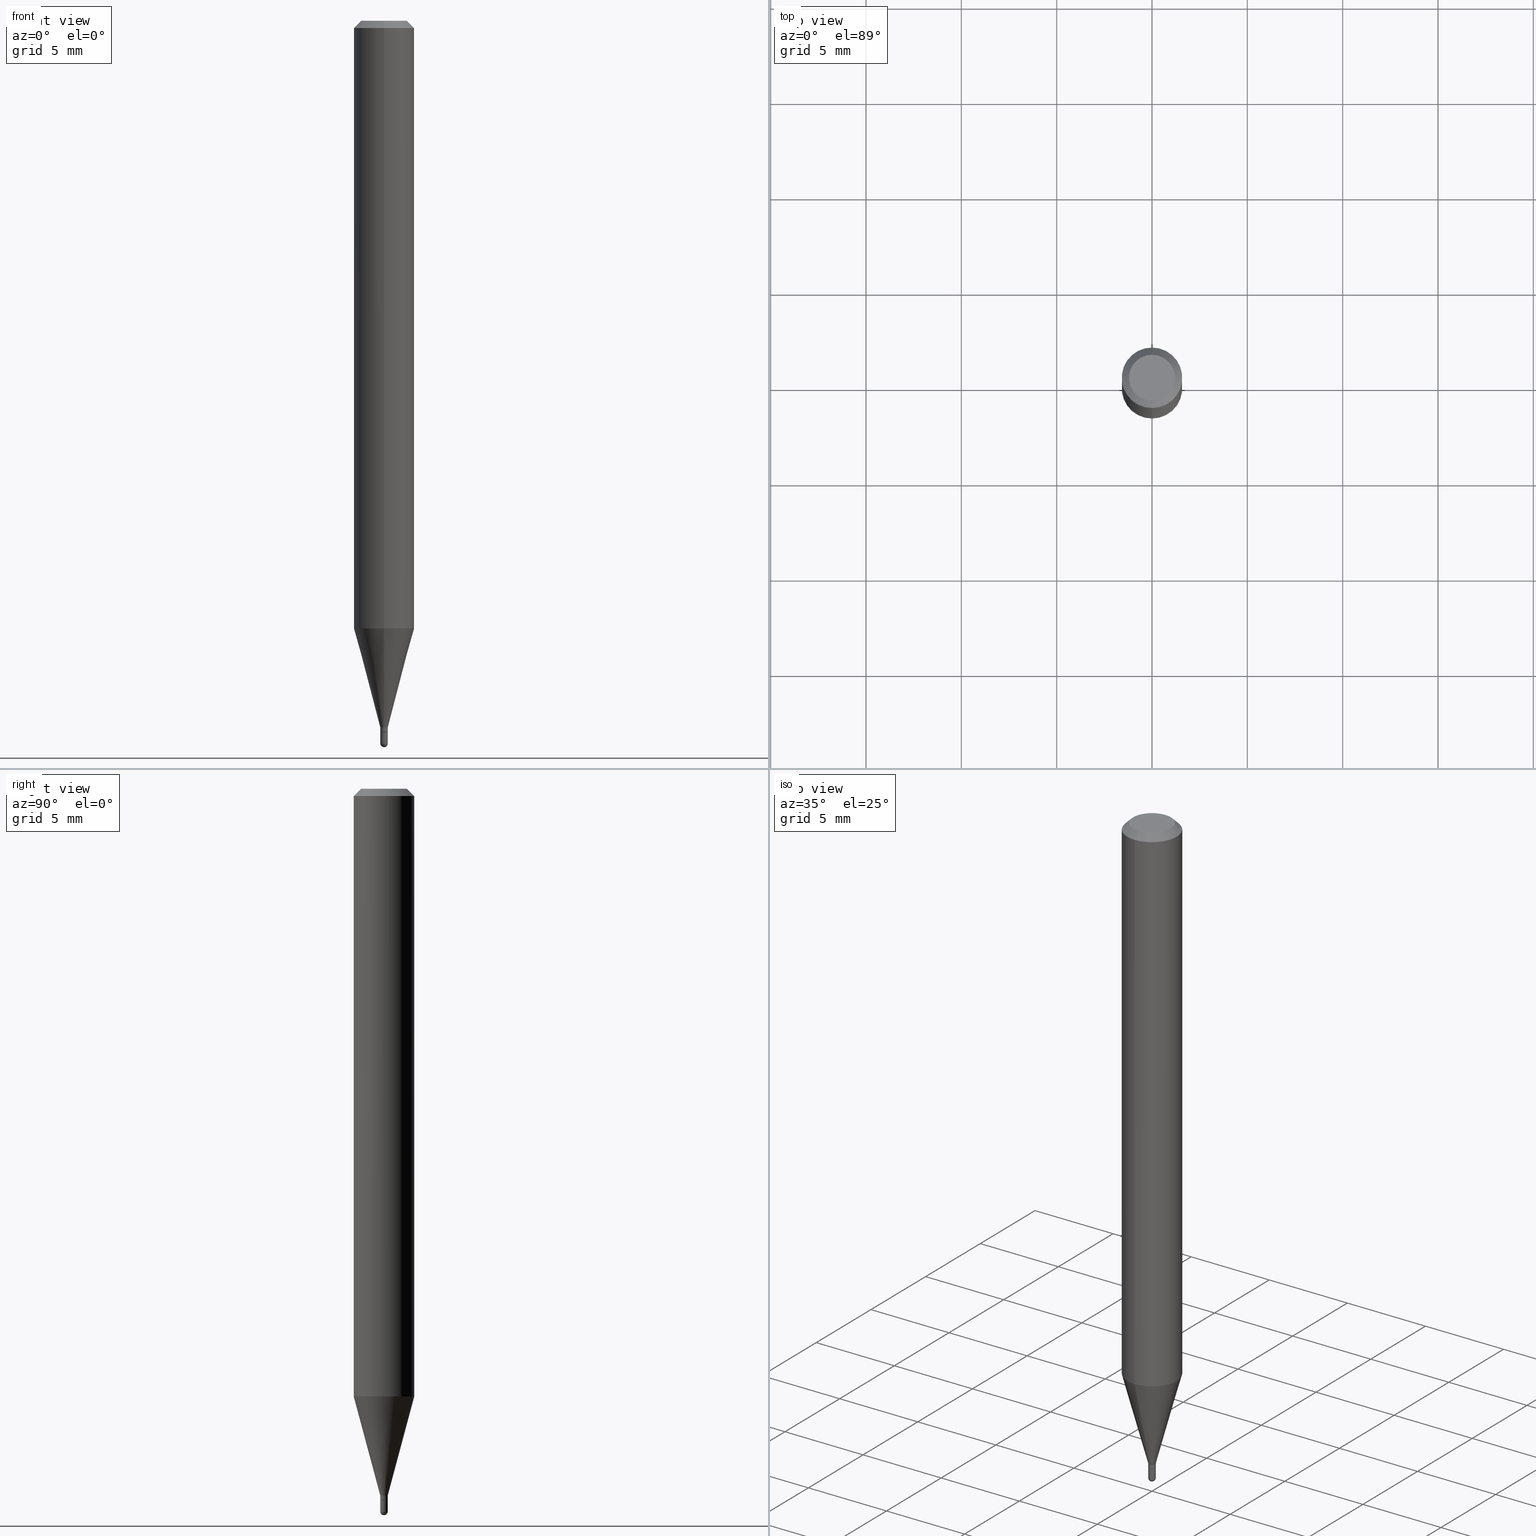
[diagram: canonical four-view strip — front | top / right | iso, engineering-drawing reading convention]
A machine part, canonical four-view strip (front | top / right | iso — engineering-drawing reading convention). The complete STEP part file that produces these views, byte-faithful:
ISO-10303-21;
HEADER;
FILE_DESCRIPTION (( 'STEP AP203' ),
    '1' );
FILE_NAME ('30102.STEP',
    '2024-03-08T15:17:46',
    ( '' ),
    ( '' ),
    'SwSTEP 2.0',
    'SolidWorks 2023',
    '' );
FILE_SCHEMA (( 'CONFIG_CONTROL_DESIGN' ));
ENDSEC;

DATA;
#1 = SHAPE_DEFINITION_REPRESENTATION ( #191, #194 ) ;
#2 = DIRECTION ( 'NONE',  ( -2.438888398687161749E-29, 3.500904856913780958E-15, 1.000000000000000000 ) ) ;
#3 = CALENDAR_DATE ( 2024, 8, 3 ) ;
#4 = DIRECTION ( 'NONE',  ( -6.982962677686265922E-15, -1.000000000000000000, 0.000000000000000000 ) ) ;
#5 = AXIS2_PLACEMENT_3D ( 'NONE', #76, #237, #117 ) ;
#6 = ORGANIZATION ( 'UNSPECIFIED', 'UNSPECIFIED', '' ) ;
#7 = LINE ( 'NONE', #442, #169 ) ;
#8 = EDGE_LOOP ( 'NONE', ( #418, #421, #465, #313 ) ) ;
#9 = DIRECTION ( 'NONE',  ( -2.445468806185136877E-29, 3.491481338843145188E-15, 1.000000000000000000 ) ) ;
#10 = EDGE_LOOP ( 'NONE', ( #232, #271, #378, #414 ) ) ;
#11 = EDGE_CURVE ( 'NONE', #463, #410, #221, .T. ) ;
#12 = DIRECTION ( 'NONE',  ( -2.438888398687161749E-29, 3.500904856913780958E-15, 1.000000000000000000 ) ) ;
#13 = ORIENTED_EDGE ( 'NONE', *, *, #511, .F. ) ;
#14 = AXIS2_PLACEMENT_3D ( 'NONE', #344, #497, #65 ) ;
#15 = VECTOR ( 'NONE', #78, 39.37007874015748143 ) ;
#16 = CARTESIAN_POINT ( 'NONE',  ( 3.582727057671441680E-29, -5.142829234806344242E-15, -1.469000000000000306 ) ) ;
#17 = VERTEX_POINT ( 'NONE', #382 ) ;
#18 = CARTESIAN_POINT ( 'NONE',  ( -5.446710888591297207E-17, -0.007800000000004489974, -1.459000000000000519 ) ) ;
#19 = ORIENTED_EDGE ( 'NONE', *, *, #257, .T. ) ;
#20 = CARTESIAN_POINT ( 'NONE',  ( 3.649128552589461564E-29, -5.209988453821742721E-15, -1.492200000000000193 ) ) ;
#21 = CARTESIAN_POINT ( 'NONE',  ( -4.364351673553611504E-16, -0.06250000000000441314, -1.254856820825980934 ) ) ;
#22 = CLOSED_SHELL ( 'NONE', ( #288, #115, #131, #27, #103, #90, #355, #75, #48, #476, #217, #276 ) ) ;
#23 = CIRCLE ( 'NONE', #5, 0.06250000000000002776 ) ;
#24 = APPROVAL_PERSON_ORGANIZATION ( #438, #294, #351 ) ;
#25 = DIRECTION ( 'NONE',  ( 5.024295867790855746E-15, 0.7071067811869431452, 0.7071067811861520003 ) ) ;
#26 = VERTEX_POINT ( 'NONE', #21 ) ;
#27 = ADVANCED_FACE ( 'NONE', ( #176 ), #306, .T. ) ;
#28 = CARTESIAN_POINT ( 'NONE',  ( -0.007799999999999709076, -5.114064936901876606E-15, -1.469000000000000750 ) ) ;
#29 = FACE_OUTER_BOUND ( 'NONE', #499, .T. ) ;
#30 = ORIENTED_EDGE ( 'NONE', *, *, #40, .F. ) ;
#31 = CARTESIAN_POINT ( 'NONE',  ( 0.007799999999999709076, -5.183453195646533500E-15, -1.469000000000000750 ) ) ;
#32 = AXIS2_PLACEMENT_3D ( 'NONE', #112, #235, #93 ) ;
#33 = CALENDAR_DATE ( 2024, 8, 3 ) ;
#34 = ORIENTED_EDGE ( 'NONE', *, *, #192, .T. ) ;
#35 = AXIS2_PLACEMENT_3D ( 'NONE', #412, #282, #80 ) ;
#36 = DIRECTION ( 'NONE',  ( -2.438888398687161749E-29, 3.500904856913780958E-15, 1.000000000000000000 ) ) ;
#37 = CARTESIAN_POINT ( 'NONE',  ( -0.007799999999999709076, -5.114064936901876606E-15, -1.492200000000000193 ) ) ;
#38 = FACE_OUTER_BOUND ( 'NONE', #216, .T. ) ;
#39 = AXIS2_PLACEMENT_3D ( 'NONE', #153, #362, #319 ) ;
#40 = EDGE_CURVE ( 'NONE', #269, #484, #308, .T. ) ;
#41 = PERSON_AND_ORGANIZATION ( #416, #6 ) ;
#42 = CARTESIAN_POINT ( 'NONE',  ( 3.558338173684570517E-29, -5.107820186237207836E-15, -1.459000000000000519 ) ) ;
#43 = CYLINDRICAL_SURFACE ( 'NONE', #256, 0.007799999999999709076 ) ;
#44 = DIRECTION ( 'NONE',  ( -2.438888398687161749E-29, 3.500904856913780958E-15, 1.000000000000000000 ) ) ;
#45 = CLOSED_SHELL ( 'NONE', ( #375, #440, #174, #359, #322 ) ) ;
#46 = CIRCLE ( 'NONE', #35, 0.007799999999999709076 ) ;
#47 = CC_DESIGN_SECURITY_CLASSIFICATION ( #196, ( #472 ) ) ;
#48 = ADVANCED_FACE ( 'NONE', ( #29 ), #182, .F. ) ;
#49 = FACE_OUTER_BOUND ( 'NONE', #419, .T. ) ;
#50 = ORIENTED_EDGE ( 'NONE', *, *, #296, .F. ) ;
#51 = FACE_OUTER_BOUND ( 'NONE', #163, .T. ) ;
#52 = EDGE_LOOP ( 'NONE', ( #337, #126, #265, #295 ) ) ;
#53 = EDGE_LOOP ( 'NONE', ( #206, #387, #255, #108 ) ) ;
#54 = EDGE_CURVE ( 'NONE', #455, #83, #158, .T. ) ;
#55 = AXIS2_PLACEMENT_3D ( 'NONE', #358, #353, #396 ) ;
#56 = CC_DESIGN_APPROVAL ( #294, ( #196 ) ) ;
#57 = LENGTH_MEASURE_WITH_UNIT ( LENGTH_MEASURE( 0.02539999999999999897 ), #501 );
#58 = ORIENTED_EDGE ( 'NONE', *, *, #84, .F. ) ;
#59 = CARTESIAN_POINT ( 'NONE',  ( 3.582727057671442241E-29, -5.142829234806345819E-15, -1.469000000000000750 ) ) ;
#60 = VERTEX_POINT ( 'NONE', #508 ) ;
#61 = CIRCLE ( 'NONE', #424, 0.04750000000000004219 ) ;
#62 = AXIS2_PLACEMENT_3D ( 'NONE', #339, #64, #172 ) ;
#63 = CC_DESIGN_DATE_AND_TIME_ASSIGNMENT ( #315, #364, ( #196 ) ) ;
#64 = DIRECTION ( 'NONE',  ( -2.445468806185136597E-29, 3.491481338843145583E-15, 1.000000000000000000 ) ) ;
#65 = DIRECTION ( 'NONE',  ( -6.982962677686265922E-15, -1.000000000000000000, 3.500904856913781353E-15 ) ) ;
#66 = ORIENTED_EDGE ( 'NONE', *, *, #159, .T. ) ;
#67 = CARTESIAN_POINT ( 'NONE',  ( 5.446710888598677370E-17, 0.007799999999994580366, -1.469000000000000750 ) ) ;
#68 = COORDINATED_UNIVERSAL_TIME_OFFSET ( 5, 0, .BEHIND. ) ;
#69 = ORIENTED_EDGE ( 'NONE', *, *, #263, .T. ) ;
#70 = DIRECTION ( 'NONE',  ( -4.937700262167293278E-15, -0.7071067811869382602, 0.7071067811861568853 ) ) ;
#71 = EDGE_CURVE ( 'NONE', #342, #168, #253, .T. ) ;
#72 = CONICAL_SURFACE ( 'NONE', #505, 0.007299999999999755469, 0.7853981633980042787 ) ;
#73 = DATE_AND_TIME ( #147, #177 ) ;
#74 = DIRECTION ( 'NONE',  ( 1.000000000000000000, -6.982962677686294321E-15, 0.000000000000000000 ) ) ;
#75 = ADVANCED_FACE ( 'NONE', ( #503 ), #367, .T. ) ;
#76 = CARTESIAN_POINT ( 'NONE',  ( 3.060455742325940316E-29, -4.393134338761063639E-15, -1.254856820825981156 ) ) ;
#77 = CC_DESIGN_PERSON_AND_ORGANIZATION_ASSIGNMENT ( #430, #111, ( #472 ) ) ;
#78 = DIRECTION ( 'NONE',  ( 1.839019923739600315E-15, 0.2588190451025249583, 0.9659258262890670910 ) ) ;
#79 = CONICAL_SURFACE ( 'NONE', #55, 0.007799999999999381213, 0.2617993877991502960 ) ;
#80 = DIRECTION ( 'NONE',  ( 1.000000000000000000, -6.982962677686294321E-15, 0.000000000000000000 ) ) ;
#81 = APPROVAL_ROLE ( '' ) ;
#82 = DIRECTION ( 'NONE',  ( -6.982962677686265133E-15, -1.000000000000000000, 3.500904856913780564E-15 ) ) ;
#83 = VERTEX_POINT ( 'NONE', #31 ) ;
#84 = EDGE_CURVE ( 'NONE', #60, #83, #379, .T. ) ;
#85 = CARTESIAN_POINT ( 'NONE',  ( 0.000000000000000000, 0.000000000000000000, 0.000000000000000000 ) ) ;
#86 = APPROVAL_PERSON_ORGANIZATION ( #464, #427, #283 ) ;
#87 = FACE_OUTER_BOUND ( 'NONE', #123, .T. ) ;
#88 = EDGE_LOOP ( 'NONE', ( #302, #352, #133, #219 ) ) ;
#89 = MANIFOLD_SOLID_BREP ( 'Body-Move/Copy2[1]', #45 ) ;
#90 = ADVANCED_FACE ( 'NONE', ( #189 ), #79, .T. ) ;
#91 = DIRECTION ( 'NONE',  ( -2.445468806185136597E-29, 3.491481338843145583E-15, 1.000000000000000000 ) ) ;
#92 = ORIENTED_EDGE ( 'NONE', *, *, #317, .F. ) ;
#93 = DIRECTION ( 'NONE',  ( -6.982962677686265922E-15, -1.000000000000000000, 3.517254291842738179E-15 ) ) ;
#94 = ORIENTED_EDGE ( 'NONE', *, *, #207, .T. ) ;
#95 = APPLICATION_CONTEXT ( 'configuration controlled 3d designs of mechanical parts and assemblies' ) ;
#96 = VECTOR ( 'NONE', #310, 39.37007874015748143 ) ;
#97 = VECTOR ( 'NONE', #482, 39.37007874015748143 ) ;
#98 = CC_DESIGN_APPROVAL ( #427, ( #280 ) ) ;
#99 = AXIS2_PLACEMENT_3D ( 'NONE', #16, #138, #343 ) ;
#100 = ORIENTED_EDGE ( 'NONE', *, *, #390, .F. ) ;
#101 = DIRECTION ( 'NONE',  ( -6.982962677686265922E-15, -1.000000000000000000, 0.000000000000000000 ) ) ;
#102 = DIRECTION ( 'NONE',  ( -2.438888398687161749E-29, 3.500904856913780958E-15, 1.000000000000000000 ) ) ;
#103 = ADVANCED_FACE ( 'NONE', ( #154 ), #152, .T. ) ;
#104 = DIRECTION ( 'NONE',  ( 1.000000000000000000, -6.982962677686265922E-15, 4.883557194083112901E-29 ) ) ;
#105 = ORIENTED_EDGE ( 'NONE', *, *, #456, .T. ) ;
#106 = AXIS2_PLACEMENT_3D ( 'NONE', #330, #448, #4 ) ;
#107 = VERTEX_POINT ( 'NONE', #509 ) ;
#108 = ORIENTED_EDGE ( 'NONE', *, *, #500, .F. ) ;
#109 = EDGE_CURVE ( 'NONE', #168, #342, #222, .T. ) ;
#110 = DIRECTION ( 'NONE',  ( -2.438888398687161749E-29, 3.500904856913780958E-15, 1.000000000000000000 ) ) ;
#111 = PERSON_AND_ORGANIZATION_ROLE ( 'creator' ) ;
#112 = CARTESIAN_POINT ( 'NONE',  ( 3.658332598030829977E-31, -5.251357285370796693E-17, -0.01500000000000035853 ) ) ;
#113 = LINE ( 'NONE', #431, #144 ) ;
#114 = CARTESIAN_POINT ( 'NONE',  ( 3.434669950589054174E-29, -5.517105378111915335E-15, -1.492200000000000193 ) ) ;
#115 = ADVANCED_FACE ( 'NONE', ( #473 ), #72, .T. ) ;
#116 = DIRECTION ( 'NONE',  ( 6.982962677686265922E-15, 1.000000000000000000, -3.517254291842738179E-15 ) ) ;
#117 = DIRECTION ( 'NONE',  ( -6.982962677686265922E-15, -1.000000000000000000, 4.370956789862819572E-15 ) ) ;
#118 = DIRECTION ( 'NONE',  ( 1.000000000000000000, 0.000000000000000000, 0.000000000000000000 ) ) ;
#119 = AXIS2_PLACEMENT_3D ( 'NONE', #458, #102, #461 ) ;
#120 = CARTESIAN_POINT ( 'NONE',  ( 5.364597654992228828E-17, 0.007299999999994612881, -1.469000000000000306 ) ) ;
#121 = COORDINATED_UNIVERSAL_TIME_OFFSET ( 5, 0, .BEHIND. ) ;
#122 = FACE_OUTER_BOUND ( 'NONE', #10, .T. ) ;
#123 = EDGE_LOOP ( 'NONE', ( #13, #66, #426, #128 ) ) ;
#124 = EDGE_CURVE ( 'NONE', #372, #17, #354, .T. ) ;
#125 = CARTESIAN_POINT ( 'NONE',  ( 4.440892098500931845E-16, 0.06249999999999561462, -1.254856820825981378 ) ) ;
#126 = ORIENTED_EDGE ( 'NONE', *, *, #296, .T. ) ;
#127 = CARTESIAN_POINT ( 'NONE',  ( 3.558338173684570517E-29, -5.107820186237207836E-15, -1.459000000000000519 ) ) ;
#128 = ORIENTED_EDGE ( 'NONE', *, *, #456, .F. ) ;
#129 = CIRCLE ( 'NONE', #239, 0.007799999999999381213 ) ;
#130 =( GEOMETRIC_REPRESENTATION_CONTEXT ( 3 ) GLOBAL_UNCERTAINTY_ASSIGNED_CONTEXT ( ( #165 ) ) GLOBAL_UNIT_ASSIGNED_CONTEXT ( ( #254, #454, #215 ) ) REPRESENTATION_CONTEXT ( 'NONE', 'WORKASPACE' ) );
#131 = ADVANCED_FACE ( 'NONE', ( #190 ), #369, .T. ) ;
#132 = DIRECTION ( 'NONE',  ( 1.000000000000000000, -6.982962677686265922E-15, 4.883557194083112901E-29 ) ) ;
#133 = ORIENTED_EDGE ( 'NONE', *, *, #304, .F. ) ;
#134 = CARTESIAN_POINT ( 'NONE',  ( 2.497557716197062816E-16, 0.007799999999994272452, -1.459000000000000519 ) ) ;
#135 = EDGE_LOOP ( 'NONE', ( #285, #225 ) ) ;
#136 = CIRCLE ( 'NONE', #479, 0.007799999999999709076 ) ;
#137 = APPROVAL_PERSON_ORGANIZATION ( #231, #487, #81 ) ;
#138 = DIRECTION ( 'NONE',  ( -2.438888398687161749E-29, 3.500904856913780958E-15, 1.000000000000000000 ) ) ;
#139 = LINE ( 'NONE', #457, #146 ) ;
#140 = ORIENTED_EDGE ( 'NONE', *, *, #304, .T. ) ;
#141 = COORDINATED_UNIVERSAL_TIME_OFFSET ( 5, 0, .BEHIND. ) ;
#142 = ORIENTED_EDGE ( 'NONE', *, *, #109, .T. ) ;
#143 = CARTESIAN_POINT ( 'NONE',  ( 3.658332598030829977E-31, -5.251357285370796693E-17, -0.01500000000000035853 ) ) ;
#144 = VECTOR ( 'NONE', #229, 39.37007874015748143 ) ;
#145 = EDGE_CURVE ( 'NONE', #17, #463, #434, .T. ) ;
#146 = VECTOR ( 'NONE', #218, 39.37007874015748143 ) ;
#147 = CALENDAR_DATE ( 2024, 8, 3 ) ;
#148 = ORIENTED_EDGE ( 'NONE', *, *, #338, .T. ) ;
#149 = DIRECTION ( 'NONE',  ( -1.000000000000000000, 6.982962677686265922E-15, -4.876176775795935793E-29 ) ) ;
#150 = DIRECTION ( 'NONE',  ( 6.982962677686265922E-15, 1.000000000000000000, -3.500904856913780958E-15 ) ) ;
#151 = DIRECTION ( 'NONE',  ( 2.438088387897960049E-29, -3.491481338843145188E-15, -1.000000000000000000 ) ) ;
#152 = CONICAL_SURFACE ( 'NONE', #39, 0.007799999999999381213, 0.2617993877991502960 ) ;
#153 = CARTESIAN_POINT ( 'NONE',  ( 3.558338173684570517E-29, -5.107820186237207836E-15, -1.459000000000000519 ) ) ;
#154 = FACE_OUTER_BOUND ( 'NONE', #307, .T. ) ;
#155 = PERSON_AND_ORGANIZATION ( #416, #6 ) ;
#156 = CARTESIAN_POINT ( 'NONE',  ( 3.434669950589054174E-29, -5.517105378111915335E-15, -1.492200000000000193 ) ) ;
#157 = DATE_AND_TIME ( #3, #385 ) ;
#158 = CIRCLE ( 'NONE', #478, 0.007799999999999709076 ) ;
#159 = EDGE_CURVE ( 'NONE', #392, #209, #277, .T. ) ;
#160 = AXIS2_PLACEMENT_3D ( 'NONE', #323, #36, #193 ) ;
#161 = LINE ( 'NONE', #477, #97 ) ;
#162 = DIRECTION ( 'NONE',  ( -6.982962677686265922E-15, -1.000000000000000000, 3.500904856913781353E-15 ) ) ;
#163 = EDGE_LOOP ( 'NONE', ( #334, #293, #340, #184 ) ) ;
#164 = LINE ( 'NONE', #366, #15 ) ;
#165 = UNCERTAINTY_MEASURE_WITH_UNIT (LENGTH_MEASURE( 1.000000000000000082E-05 ), #254, 'distance_accuracy_value', 'NONE');
#166 = EDGE_CURVE ( 'NONE', #26, #331, #23, .T. ) ;
#167 = DIRECTION ( 'NONE',  ( -2.438888398687161749E-29, 3.500904856913780958E-15, 1.000000000000000000 ) ) ;
#168 = VERTEX_POINT ( 'NONE', #398 ) ;
#169 = VECTOR ( 'NONE', #9, 39.37007874015748143 ) ;
#170 = DIRECTION ( 'NONE',  ( -2.438888398687161469E-29, 3.500904856913780958E-15, 1.000000000000000000 ) ) ;
#171 = ORIENTED_EDGE ( 'NONE', *, *, #446, .T. ) ;
#172 = DIRECTION ( 'NONE',  ( 1.000000000000000000, -6.982962677686266711E-15, 4.876176775795935232E-29 ) ) ;
#173 = ORIENTED_EDGE ( 'NONE', *, *, #84, .T. ) ;
#174 = ADVANCED_FACE ( 'NONE', ( #38 ), #197, .F. ) ;
#175 = LINE ( 'NONE', #299, #495 ) ;
#176 = FACE_OUTER_BOUND ( 'NONE', #248, .T. ) ;
#177 = LOCAL_TIME ( 10, 17, 46.00000000000000000, #121 ) ;
#178 = FACE_OUTER_BOUND ( 'NONE', #53, .T. ) ;
#179 = VERTEX_POINT ( 'NONE', #469 ) ;
#180 = CC_DESIGN_PERSON_AND_ORGANIZATION_ASSIGNMENT ( #365, #241, ( #280 ) ) ;
#181 = DIRECTION ( 'NONE',  ( 1.000000000000000000, -7.105427357601001070E-15, 4.926315508542082329E-29 ) ) ;
#182 = PLANE ( 'NONE',  #186 ) ;
#183 = MECHANICAL_CONTEXT ( 'NONE', #303, 'mechanical' ) ;
#184 = ORIENTED_EDGE ( 'NONE', *, *, #257, .F. ) ;
#185 = CARTESIAN_POINT ( 'NONE',  ( 3.582727057671441680E-29, -5.142829234806344242E-15, -1.469000000000000306 ) ) ;
#186 = AXIS2_PLACEMENT_3D ( 'NONE', #350, #502, #150 ) ;
#187 = APPROVAL_STATUS ( 'not_yet_approved' ) ;
#188 = ORIENTED_EDGE ( 'NONE', *, *, #40, .T. ) ;
#189 = FACE_OUTER_BOUND ( 'NONE', #211, .T. ) ;
#190 = FACE_OUTER_BOUND ( 'NONE', #52, .T. ) ;
#191 = PRODUCT_DEFINITION_SHAPE ( 'NONE', 'NONE',  #280 ) ;
#192 = EDGE_CURVE ( 'NONE', #269, #168, #113, .T. ) ;
#193 = DIRECTION ( 'NONE',  ( -6.982962677686265922E-15, -1.000000000000000000, 3.517254291842738179E-15 ) ) ;
#194 = ADVANCED_BREP_SHAPE_REPRESENTATION ( '30102', ( #89, #273, #395 ), #130 ) ;
#195 = AXIS2_PLACEMENT_3D ( 'NONE', #143, #258, #397 ) ;
#196 = SECURITY_CLASSIFICATION ( '', '', #202 ) ;
#197 = PLANE ( 'NONE',  #290 ) ;
#198 = CARTESIAN_POINT ( 'NONE',  ( 3.581507613472099215E-29, -5.141078782377889985E-15, -1.468500000000000805 ) ) ;
#199 = EDGE_CURVE ( 'NONE', #484, #269, #61, .T. ) ;
#200 = APPROVAL_STATUS ( 'not_yet_approved' ) ;
#201 = CARTESIAN_POINT ( 'NONE',  ( 0.000000000000000000, 0.000000000000000000, 0.000000000000000000 ) ) ;
#202 = SECURITY_CLASSIFICATION_LEVEL ( 'unclassified' ) ;
#203 = AXIS2_PLACEMENT_3D ( 'NONE', #156, #132, #435 ) ;
#204 = CARTESIAN_POINT ( 'NONE',  ( 3.840629472727450339E-16, 0.04750000000000004219, -5.239320876657356674E-16 ) ) ;
#205 = AXIS2_PLACEMENT_3D ( 'NONE', #20, #91, #341 ) ;
#206 = ORIENTED_EDGE ( 'NONE', *, *, #159, .F. ) ;
#207 = EDGE_CURVE ( 'NONE', #83, #455, #417, .T. ) ;
#208 = DIRECTION ( 'NONE',  ( -2.438888398687161749E-29, 3.500904856913780958E-15, 1.000000000000000000 ) ) ;
#209 = VERTEX_POINT ( 'NONE', #234 ) ;
#210 = DIRECTION ( 'NONE',  ( 1.000000000000000000, -6.982962677686294321E-15, 0.000000000000000000 ) ) ;
#211 = EDGE_LOOP ( 'NONE', ( #486, #19, #423, #504 ) ) ;
#212 = PLANE ( 'NONE',  #447 ) ;
#213 = VERTEX_POINT ( 'NONE', #37 ) ;
#214 = VECTOR ( 'NONE', #25, 39.37007874015748143 ) ;
#215 =( NAMED_UNIT ( * ) SI_UNIT ( $, .STERADIAN. ) SOLID_ANGLE_UNIT ( ) );
#216 = EDGE_LOOP ( 'NONE', ( #94, #347 ) ) ;
#217 = ADVANCED_FACE ( 'NONE', ( #49 ), #407, .T. ) ;
#218 = DIRECTION ( 'NONE',  ( -2.438888398687161749E-29, 3.500904856913780958E-15, 1.000000000000000000 ) ) ;
#219 = ORIENTED_EDGE ( 'NONE', *, *, #11, .F. ) ;
#220 = SPHERICAL_SURFACE ( 'NONE', #480, 0.007800000000000068164 ) ;
#221 = LINE ( 'NONE', #300, #289 ) ;
#222 = CIRCLE ( 'NONE', #160, 0.06250000000000001388 ) ;
#223 = CIRCLE ( 'NONE', #361, 0.007799999999999709076 ) ;
#224 = CARTESIAN_POINT ( 'NONE',  ( 5.186961971052139529E-17, 0.007299999999994612881, -1.469000000000000306 ) ) ;
#225 = ORIENTED_EDGE ( 'NONE', *, *, #124, .F. ) ;
#226 = EDGE_CURVE ( 'NONE', #213, #209, #136, .T. ) ;
#227 = PERSON_AND_ORGANIZATION_ROLE ( 'classification_officer' ) ;
#228 = ORIENTED_EDGE ( 'NONE', *, *, #317, .T. ) ;
#229 = DIRECTION ( 'NONE',  ( 4.937700262164543309E-15, 0.7071067811865444641, -0.7071067811865505703 ) ) ;
#230 = CC_DESIGN_DATE_AND_TIME_ASSIGNMENT ( #404, #467, ( #280 ) ) ;
#231 = PERSON_AND_ORGANIZATION ( #416, #6 ) ;
#232 = ORIENTED_EDGE ( 'NONE', *, *, #446, .F. ) ;
#233 = AXIS2_PLACEMENT_3D ( 'NONE', #198, #336, #485 ) ;
#234 = CARTESIAN_POINT ( 'NONE',  ( -5.446710888591666985E-17, -0.007800000000005251517, -1.492200000000000193 ) ) ;
#235 = DIRECTION ( 'NONE',  ( -2.438888398687161749E-29, 3.500904856913780958E-15, 1.000000000000000000 ) ) ;
#236 = DIRECTION ( 'NONE',  ( -2.438888398687161749E-29, 3.500904856913780958E-15, 1.000000000000000000 ) ) ;
#237 = DIRECTION ( 'NONE',  ( -2.438888398687161749E-29, 3.500904856913780958E-15, 1.000000000000000000 ) ) ;
#238 = COORDINATED_UNIVERSAL_TIME_OFFSET ( 5, 0, .BEHIND. ) ;
#239 = AXIS2_PLACEMENT_3D ( 'NONE', #42, #12, #291 ) ;
#240 = DIRECTION ( 'NONE',  ( -2.445468806185136597E-29, 3.491481338843145583E-15, 1.000000000000000000 ) ) ;
#241 = PERSON_AND_ORGANIZATION_ROLE ( 'creator' ) ;
#242 = FACE_OUTER_BOUND ( 'NONE', #262, .T. ) ;
#243 = APPROVAL_DATE_TIME ( #368, #487 ) ;
#244 = DIRECTION ( 'NONE',  ( 1.000000000000000000, -6.982962677686266711E-15, 4.876176775795935232E-29 ) ) ;
#245 = ORIENTED_EDGE ( 'NONE', *, *, #71, .F. ) ;
#246 = CYLINDRICAL_SURFACE ( 'NONE', #494, 0.06250000000000001388 ) ;
#247 = CC_DESIGN_APPROVAL ( #487, ( #472 ) ) ;
#248 = EDGE_LOOP ( 'NONE', ( #490, #171, #245, #298 ) ) ;
#249 = DESIGN_CONTEXT ( 'detailed design', #95, 'design' ) ;
#250 = CYLINDRICAL_SURFACE ( 'NONE', #471, 0.007799999999999660504 ) ;
#251 = ORIENTED_EDGE ( 'NONE', *, *, #124, .T. ) ;
#252 = CARTESIAN_POINT ( 'NONE',  ( -3.773273898774342241E-16, -0.04750000000000004219, -1.913461262589262082E-16 ) ) ;
#253 = CIRCLE ( 'NONE', #32, 0.06250000000000001388 ) ;
#254 =( CONVERSION_BASED_UNIT ( 'INCH', #57 ) LENGTH_UNIT ( ) NAMED_UNIT ( #415 ) );
#255 = ORIENTED_EDGE ( 'NONE', *, *, #263, .F. ) ;
#256 = AXIS2_PLACEMENT_3D ( 'NONE', #201, #405, #244 ) ;
#257 = EDGE_CURVE ( 'NONE', #449, #410, #394, .T. ) ;
#258 = DIRECTION ( 'NONE',  ( 2.438888398687161749E-29, -3.500904856913780958E-15, -1.000000000000000000 ) ) ;
#259 = CARTESIAN_POINT ( 'NONE',  ( -5.446710888591679927E-17, -0.007800000000005103198, -1.468500000000000805 ) ) ;
#260 = DIRECTION ( 'NONE',  ( -2.438888398687161749E-29, 3.500904856913780958E-15, 1.000000000000000000 ) ) ;
#261 = LINE ( 'NONE', #301, #506 ) ;
#262 = EDGE_LOOP ( 'NONE', ( #92, #445, #381, #173, #413 ) ) ;
#263 = EDGE_CURVE ( 'NONE', #60, #179, #46, .T. ) ;
#264 = FACE_OUTER_BOUND ( 'NONE', #428, .T. ) ;
#265 = ORIENTED_EDGE ( 'NONE', *, *, #71, .T. ) ;
#266 = CIRCLE ( 'NONE', #99, 0.007299999999999755469 ) ;
#267 = PRODUCT_RELATED_PRODUCT_CATEGORY ( 'detail', '', ( #510 ) ) ;
#268 = APPLICATION_PROTOCOL_DEFINITION ( 'international standard', 'config_control_design', 1994, #303 ) ;
#269 = VERTEX_POINT ( 'NONE', #204 ) ;
#270 = APPROVAL_DATE_TIME ( #73, #427 ) ;
#271 = ORIENTED_EDGE ( 'NONE', *, *, #370, .T. ) ;
#272 = DIRECTION ( 'NONE',  ( -6.982962677686265133E-15, -1.000000000000000000, 3.500904856913780564E-15 ) ) ;
#273 = MANIFOLD_SOLID_BREP ( 'Body-Move/Copy2[2]', #22 ) ;
#274 = APPROVAL_DATE_TIME ( #157, #294 ) ;
#275 = CARTESIAN_POINT ( 'NONE',  ( 3.582727057671441680E-29, -5.142829234806344242E-15, -1.469000000000000306 ) ) ;
#276 = ADVANCED_FACE ( 'NONE', ( #51 ), #250, .T. ) ;
#277 = CIRCLE ( 'NONE', #399, 0.007800000000000068164 ) ;
#278 = LOCAL_TIME ( 10, 17, 46.00000000000000000, #238 ) ;
#279 = DIRECTION ( 'NONE',  ( 2.438888398687161749E-29, -3.500904856913780958E-15, -1.000000000000000000 ) ) ;
#280 = PRODUCT_DEFINITION ( 'UNKNOWN', '', #472, #249 ) ;
#281 = PERSON_AND_ORGANIZATION_ROLE ( 'design_owner' ) ;
#282 = DIRECTION ( 'NONE',  ( -2.445468806185136597E-29, 3.491481338843145583E-15, 1.000000000000000000 ) ) ;
#283 = APPROVAL_ROLE ( '' ) ;
#284 = CYLINDRICAL_SURFACE ( 'NONE', #309, 0.007799999999999660504 ) ;
#285 = ORIENTED_EDGE ( 'NONE', *, *, #411, .F. ) ;
#286 = SPHERICAL_SURFACE ( 'NONE', #203, 0.007800000000000068164 ) ;
#287 = ORIENTED_EDGE ( 'NONE', *, *, #166, .F. ) ;
#288 = ADVANCED_FACE ( 'NONE', ( #439 ), #284, .T. ) ;
#289 = VECTOR ( 'NONE', #260, 39.37007874015748143 ) ;
#290 = AXIS2_PLACEMENT_3D ( 'NONE', #67, #151, #149 ) ;
#291 = DIRECTION ( 'NONE',  ( -6.982962677686266711E-15, -1.000000000000000000, 0.000000000000000000 ) ) ;
#292 = LOCAL_TIME ( 10, 17, 46.00000000000000000, #68 ) ;
#293 = ORIENTED_EDGE ( 'NONE', *, *, #332, .T. ) ;
#294 = APPROVAL ( #187, 'UNSPECIFIED' ) ;
#295 = ORIENTED_EDGE ( 'NONE', *, *, #192, .F. ) ;
#296 = EDGE_CURVE ( 'NONE', #484, #342, #161, .T. ) ;
#297 = DIRECTION ( 'NONE',  ( -2.438888398687161749E-29, 3.500904856913780958E-15, 1.000000000000000000 ) ) ;
#298 = ORIENTED_EDGE ( 'NONE', *, *, #403, .F. ) ;
#299 = CARTESIAN_POINT ( 'NONE',  ( -4.364351673553917187E-16, -0.06250000000000001388, 2.188065535571113838E-16 ) ) ;
#300 = CARTESIAN_POINT ( 'NONE',  ( -5.446710888595049843E-17, -0.007799999999999660504, 2.730705788392630131E-17 ) ) ;
#301 = CARTESIAN_POINT ( 'NONE',  ( 4.440892098500627148E-16, 0.06250000000000001388, -2.188065535571113838E-16 ) ) ;
#302 = ORIENTED_EDGE ( 'NONE', *, *, #348, .T. ) ;
#303 = APPLICATION_CONTEXT ( 'configuration controlled 3d designs of mechanical parts and assemblies' ) ;
#304 = EDGE_CURVE ( 'NONE', #410, #449, #129, .T. ) ;
#305 = DIRECTION ( 'NONE',  ( 1.000000000000000000, -6.982962677686294321E-15, 0.000000000000000000 ) ) ;
#306 = CYLINDRICAL_SURFACE ( 'NONE', #14, 0.06250000000000001388 ) ;
#307 = EDGE_LOOP ( 'NONE', ( #140, #148, #287, #100 ) ) ;
#308 = CIRCLE ( 'NONE', #119, 0.04750000000000004219 ) ;
#309 = AXIS2_PLACEMENT_3D ( 'NONE', #374, #402, #483 ) ;
#310 = DIRECTION ( 'NONE',  ( -2.445468806185136877E-29, 3.491481338843145188E-15, 1.000000000000000000 ) ) ;
#311 = LOCAL_TIME ( 10, 17, 46.00000000000000000, #141 ) ;
#312 = PERSON_AND_ORGANIZATION ( #416, #6 ) ;
#313 = ORIENTED_EDGE ( 'NONE', *, *, #145, .F. ) ;
#314 = CARTESIAN_POINT ( 'NONE',  ( 0.007799999999999709076, -5.446710888595084972E-17, 3.803417885120687718E-31 ) ) ;
#315 = DATE_AND_TIME ( #33, #311 ) ;
#316 = CARTESIAN_POINT ( 'NONE',  ( 3.592393676285967459E-29, -5.128986086760582589E-15, -1.469000000000000750 ) ) ;
#317 = EDGE_CURVE ( 'NONE', #213, #455, #7, .T. ) ;
#318 = CARTESIAN_POINT ( 'NONE',  ( 3.658332598030829977E-31, -5.251357285370796693E-17, -0.01500000000000035853 ) ) ;
#319 = DIRECTION ( 'NONE',  ( -6.982962677686266711E-15, -1.000000000000000000, 0.000000000000000000 ) ) ;
#320 = AXIS2_PLACEMENT_3D ( 'NONE', #444, #2, #325 ) ;
#321 = DIRECTION ( 'NONE',  ( -6.982962677686265922E-15, -1.000000000000000000, 0.000000000000000000 ) ) ;
#322 = ADVANCED_FACE ( 'NONE', ( #242 ), #43, .T. ) ;
#323 = CARTESIAN_POINT ( 'NONE',  ( 3.658332598030829977E-31, -5.251357285370796693E-17, -0.01500000000000035853 ) ) ;
#324 = DIRECTION ( 'NONE',  ( 0.000000000000000000, 0.000000000000000000, 1.000000000000000000 ) ) ;
#325 = DIRECTION ( 'NONE',  ( -6.982962677686265922E-15, -1.000000000000000000, 4.370956789862819572E-15 ) ) ;
#326 = CIRCLE ( 'NONE', #453, 0.007799999999999937192 ) ;
#327 = AXIS2_PLACEMENT_3D ( 'NONE', #386, #181, #349 ) ;
#328 = CIRCLE ( 'NONE', #327, 0.007800000000000068164 ) ;
#329 = CARTESIAN_POINT ( 'NONE',  ( -4.364351673553913736E-16, -0.06250000000000006939, -0.01500000000000013822 ) ) ;
#330 = CARTESIAN_POINT ( 'NONE',  ( 3.582727057671441680E-29, -5.142829234806344242E-15, -1.469000000000000306 ) ) ;
#331 = VERTEX_POINT ( 'NONE', #125 ) ;
#332 = EDGE_CURVE ( 'NONE', #107, #463, #326, .T. ) ;
#333 = DIRECTION ( 'NONE',  ( -6.982962677686266711E-15, -1.000000000000000000, 0.000000000000000000 ) ) ;
#334 = ORIENTED_EDGE ( 'NONE', *, *, #433, .F. ) ;
#335 = AXIS2_PLACEMENT_3D ( 'NONE', #275, #236, #321 ) ;
#336 = DIRECTION ( 'NONE',  ( -2.438888398687161749E-29, 3.500904856913780958E-15, 1.000000000000000000 ) ) ;
#337 = ORIENTED_EDGE ( 'NONE', *, *, #199, .F. ) ;
#338 = EDGE_CURVE ( 'NONE', #449, #331, #164, .T. ) ;
#339 = CARTESIAN_POINT ( 'NONE',  ( 0.000000000000000000, 0.000000000000000000, 0.000000000000000000 ) ) ;
#340 = ORIENTED_EDGE ( 'NONE', *, *, #11, .T. ) ;
#341 = DIRECTION ( 'NONE',  ( 1.000000000000000000, -6.982962677686294321E-15, 0.000000000000000000 ) ) ;
#342 = VERTEX_POINT ( 'NONE', #329 ) ;
#343 = DIRECTION ( 'NONE',  ( -6.982962677686265922E-15, -1.000000000000000000, 0.000000000000000000 ) ) ;
#344 = CARTESIAN_POINT ( 'NONE',  ( 0.000000000000000000, 0.000000000000000000, 0.000000000000000000 ) ) ;
#345 = CIRCLE ( 'NONE', #320, 0.06250000000000002776 ) ;
#346 = CARTESIAN_POINT ( 'NONE',  ( 3.649128552589461564E-29, -5.209988453821742721E-15, -1.492200000000000193 ) ) ;
#347 = ORIENTED_EDGE ( 'NONE', *, *, #54, .T. ) ;
#348 = EDGE_CURVE ( 'NONE', #463, #107, #384, .T. ) ;
#349 = DIRECTION ( 'NONE',  ( 7.105427357601000281E-15, 1.000000000000000000, 0.000000000000000000 ) ) ;
#350 = CARTESIAN_POINT ( 'NONE',  ( 3.316907271900979054E-16, 0.04750000000000004219, -3.451125341845701985E-16 ) ) ;
#351 = APPROVAL_ROLE ( '' ) ;
#352 = ORIENTED_EDGE ( 'NONE', *, *, #433, .T. ) ;
#353 = DIRECTION ( 'NONE',  ( -2.438888398687161749E-29, 3.500904856913780958E-15, 1.000000000000000000 ) ) ;
#354 = CIRCLE ( 'NONE', #335, 0.007299999999999755469 ) ;
#355 = ADVANCED_FACE ( 'NONE', ( #122 ), #246, .T. ) ;
#356 = COORDINATED_UNIVERSAL_TIME_OFFSET ( 5, 0, .BEHIND. ) ;
#357 = DIRECTION ( 'NONE',  ( -2.445468806185136597E-29, 3.491481338843145583E-15, 1.000000000000000000 ) ) ;
#358 = CARTESIAN_POINT ( 'NONE',  ( 3.558338173684570517E-29, -5.107820186237207836E-15, -1.459000000000000519 ) ) ;
#359 = ADVANCED_FACE ( 'NONE', ( #87 ), #286, .T. ) ;
#360 = AXIS2_PLACEMENT_3D ( 'NONE', #429, #393, #74 ) ;
#361 = AXIS2_PLACEMENT_3D ( 'NONE', #346, #489, #305 ) ;
#362 = DIRECTION ( 'NONE',  ( -2.438888398687161749E-29, 3.500904856913780958E-15, 1.000000000000000000 ) ) ;
#363 = CC_DESIGN_PERSON_AND_ORGANIZATION_ASSIGNMENT ( #155, #475, ( #472 ) ) ;
#364 = DATE_TIME_ROLE ( 'classification_date' ) ;
#365 = PERSON_AND_ORGANIZATION ( #416, #6 ) ;
#366 = CARTESIAN_POINT ( 'NONE',  ( 5.542233338931899661E-17, 0.007799999999994273320, -1.459000000000000519 ) ) ;
#367 = CONICAL_SURFACE ( 'NONE', #195, 0.06250000000000001388, 0.7853981633974473908 ) ;
#368 = DATE_AND_TIME ( #391, #278 ) ;
#369 = CONICAL_SURFACE ( 'NONE', #376, 0.06250000000000001388, 0.7853981633974473908 ) ;
#370 = EDGE_CURVE ( 'NONE', #331, #26, #345, .T. ) ;
#371 = CARTESIAN_POINT ( 'NONE',  ( 0.000000000000000000, 0.000000000000000000, 0.000000000000000000 ) ) ;
#372 = VERTEX_POINT ( 'NONE', #120 ) ;
#373 = DIRECTION ( 'NONE',  ( -6.982962677686266711E-15, -1.000000000000000000, 0.000000000000000000 ) ) ;
#374 = CARTESIAN_POINT ( 'NONE',  ( 0.000000000000000000, 0.000000000000000000, 0.000000000000000000 ) ) ;
#375 = ADVANCED_FACE ( 'NONE', ( #264 ), #377, .T. ) ;
#376 = AXIS2_PLACEMENT_3D ( 'NONE', #318, #279, #116 ) ;
#377 = CYLINDRICAL_SURFACE ( 'NONE', #62, 0.007799999999999709076 ) ;
#378 = ORIENTED_EDGE ( 'NONE', *, *, #403, .T. ) ;
#379 = LINE ( 'NONE', #314, #96 ) ;
#380 = DIRECTION ( 'NONE',  ( -2.438888398687161749E-29, 3.500904856913780958E-15, 1.000000000000000000 ) ) ;
#381 = ORIENTED_EDGE ( 'NONE', *, *, #500, .T. ) ;
#382 = CARTESIAN_POINT ( 'NONE',  ( -5.097562754707220825E-17, -0.007300000000004898057, -1.469000000000000306 ) ) ;
#383 = DIRECTION ( 'NONE',  ( -6.982962677686265922E-15, -1.000000000000000000, 3.500904856913780958E-15 ) ) ;
#384 = CIRCLE ( 'NONE', #233, 0.007799999999999937192 ) ;
#385 = LOCAL_TIME ( 10, 17, 46.00000000000000000, #356 ) ;
#386 = CARTESIAN_POINT ( 'NONE',  ( 3.434669950589054174E-29, -5.517105378111915335E-15, -1.492200000000000193 ) ) ;
#387 = ORIENTED_EDGE ( 'NONE', *, *, #511, .T. ) ;
#388 = ORIENTED_EDGE ( 'NONE', *, *, #199, .T. ) ;
#389 = DIRECTION ( 'NONE',  ( -2.438888398687161749E-29, 3.500904856913780958E-15, 1.000000000000000000 ) ) ;
#390 = EDGE_CURVE ( 'NONE', #410, #26, #498, .T. ) ;
#391 = CALENDAR_DATE ( 2024, 8, 3 ) ;
#392 = VERTEX_POINT ( 'NONE', #492 ) ;
#393 = DIRECTION ( 'NONE',  ( -2.445468806185136597E-29, 3.491481338843145583E-15, 1.000000000000000000 ) ) ;
#394 = CIRCLE ( 'NONE', #432, 0.007799999999999381213 ) ;
#395 = AXIS2_PLACEMENT_3D ( 'NONE', #481, #324, #118 ) ;
#396 = DIRECTION ( 'NONE',  ( -6.982962677686266711E-15, -1.000000000000000000, 0.000000000000000000 ) ) ;
#397 = DIRECTION ( 'NONE',  ( 6.982962677686265922E-15, 1.000000000000000000, -3.517254291842738179E-15 ) ) ;
#398 = CARTESIAN_POINT ( 'NONE',  ( 4.440892098500935790E-16, 0.06249999999999996531, -0.01500000000000057884 ) ) ;
#399 = AXIS2_PLACEMENT_3D ( 'NONE', #114, #512, #507 ) ;
#400 = APPLICATION_PROTOCOL_DEFINITION ( 'international standard', 'config_control_design', 1994, #95 ) ;
#401 = CARTESIAN_POINT ( 'NONE',  ( 3.649128552589461564E-29, -5.209988453821742721E-15, -1.492200000000000193 ) ) ;
#402 = DIRECTION ( 'NONE',  ( -2.438888398687161749E-29, 3.500904856913780958E-15, 1.000000000000000000 ) ) ;
#403 = EDGE_CURVE ( 'NONE', #26, #342, #175, .T. ) ;
#404 = DATE_AND_TIME ( #425, #292 ) ;
#405 = DIRECTION ( 'NONE',  ( -2.445468806185136597E-29, 3.491481338843145583E-15, 1.000000000000000000 ) ) ;
#406 = ORIENTED_EDGE ( 'NONE', *, *, #332, .F. ) ;
#407 = CONICAL_SURFACE ( 'NONE', #106, 0.007299999999999755469, 0.7853981633980042787 ) ;
#408 = CIRCLE ( 'NONE', #205, 0.007799999999999709076 ) ;
#409 = DIRECTION ( 'NONE',  ( -2.438888398687161749E-29, 3.500904856913780958E-15, 1.000000000000000000 ) ) ;
#410 = VERTEX_POINT ( 'NONE', #450 ) ;
#411 = EDGE_CURVE ( 'NONE', #17, #372, #266, .T. ) ;
#412 = CARTESIAN_POINT ( 'NONE',  ( 3.649128552589461564E-29, -5.209988453821742721E-15, -1.492200000000000193 ) ) ;
#413 = ORIENTED_EDGE ( 'NONE', *, *, #54, .F. ) ;
#414 = ORIENTED_EDGE ( 'NONE', *, *, #109, .F. ) ;
#415 = DIMENSIONAL_EXPONENTS ( 1.000000000000000000, 0.000000000000000000, 0.000000000000000000, 0.000000000000000000, 0.000000000000000000, 0.000000000000000000, 0.000000000000000000 ) ;
#416 = PERSON ( 'UNSPECIFIED', 'UNSPECIFIED', 'UNSPECIFIED', ('UNSPECIFIED'), ('UNSPECIFIED'), ('UNSPECIFIED') ) ;
#417 = CIRCLE ( 'NONE', #360, 0.007799999999999709076 ) ;
#418 = ORIENTED_EDGE ( 'NONE', *, *, #411, .T. ) ;
#419 = EDGE_LOOP ( 'NONE', ( #493, #251, #443, #406 ) ) ;
#420 = DIRECTION ( 'NONE',  ( -1.807323732225330139E-15, -0.2588190451025181860, 0.9659258262890689783 ) ) ;
#421 = ORIENTED_EDGE ( 'NONE', *, *, #491, .T. ) ;
#422 = LINE ( 'NONE', #224, #214 ) ;
#423 = ORIENTED_EDGE ( 'NONE', *, *, #390, .T. ) ;
#424 = AXIS2_PLACEMENT_3D ( 'NONE', #466, #110, #272 ) ;
#425 = CALENDAR_DATE ( 2024, 8, 3 ) ;
#426 = ORIENTED_EDGE ( 'NONE', *, *, #226, .F. ) ;
#427 = APPROVAL ( #200, 'UNSPECIFIED' ) ;
#428 = EDGE_LOOP ( 'NONE', ( #105, #228, #452, #58, #69 ) ) ;
#429 = CARTESIAN_POINT ( 'NONE',  ( 3.592393676285967459E-29, -5.128986086760582589E-15, -1.469000000000000750 ) ) ;
#430 = PERSON_AND_ORGANIZATION ( #416, #6 ) ;
#431 = CARTESIAN_POINT ( 'NONE',  ( 4.364351673553921131E-16, 0.06249999999999996531, -0.01500000000000057884 ) ) ;
#432 = AXIS2_PLACEMENT_3D ( 'NONE', #127, #208, #373 ) ;
#433 = EDGE_CURVE ( 'NONE', #107, #449, #139, .T. ) ;
#434 = LINE ( 'NONE', #470, #436 ) ;
#435 = DIRECTION ( 'NONE',  ( -6.982962677686265922E-15, -1.000000000000000000, 0.000000000000000000 ) ) ;
#436 = VECTOR ( 'NONE', #70, 39.37007874015748143 ) ;
#437 = VECTOR ( 'NONE', #420, 39.37007874015748143 ) ;
#438 = PERSON_AND_ORGANIZATION ( #416, #6 ) ;
#439 = FACE_OUTER_BOUND ( 'NONE', #88, .T. ) ;
#440 = ADVANCED_FACE ( 'NONE', ( #178 ), #220, .T. ) ;
#441 = APPROVAL_STATUS ( 'not_yet_approved' ) ;
#442 = CARTESIAN_POINT ( 'NONE',  ( -0.007799999999999709076, 5.542233338928574736E-17, -3.836769370398683487E-31 ) ) ;
#443 = ORIENTED_EDGE ( 'NONE', *, *, #145, .T. ) ;
#444 = CARTESIAN_POINT ( 'NONE',  ( 3.060455742325940316E-29, -4.393134338761063639E-15, -1.254856820825981156 ) ) ;
#445 = ORIENTED_EDGE ( 'NONE', *, *, #226, .T. ) ;
#446 = EDGE_CURVE ( 'NONE', #331, #168, #261, .T. ) ;
#447 = AXIS2_PLACEMENT_3D ( 'NONE', #59, #170, #383 ) ;
#448 = DIRECTION ( 'NONE',  ( -2.438888398687161749E-29, 3.500904856913780958E-15, 1.000000000000000000 ) ) ;
#449 = VERTEX_POINT ( 'NONE', #134 ) ;
#450 = CARTESIAN_POINT ( 'NONE',  ( -5.446710888591297207E-17, -0.007800000000004489974, -1.459000000000000519 ) ) ;
#451 = EDGE_LOOP ( 'NONE', ( #50, #30, #34, #142 ) ) ;
#452 = ORIENTED_EDGE ( 'NONE', *, *, #207, .F. ) ;
#453 = AXIS2_PLACEMENT_3D ( 'NONE', #488, #167, #333 ) ;
#454 =( NAMED_UNIT ( * ) PLANE_ANGLE_UNIT ( ) SI_UNIT ( $, .RADIAN. ) );
#455 = VERTEX_POINT ( 'NONE', #28 ) ;
#456 = EDGE_CURVE ( 'NONE', #179, #213, #408, .T. ) ;
#457 = CARTESIAN_POINT ( 'NONE',  ( 5.542233338928538990E-17, 0.007799999999999660504, -2.730705788392630131E-17 ) ) ;
#458 = CARTESIAN_POINT ( 'NONE',  ( 8.722418688872659723E-45, -1.252060486586731701E-30, -3.576391069623309378E-16 ) ) ;
#459 = CC_DESIGN_PERSON_AND_ORGANIZATION_ASSIGNMENT ( #41, #227, ( #196 ) ) ;
#460 = FACE_OUTER_BOUND ( 'NONE', #135, .T. ) ;
#461 = DIRECTION ( 'NONE',  ( -6.982962677686265133E-15, -1.000000000000000000, 3.500904856913780564E-15 ) ) ;
#462 = CC_DESIGN_PERSON_AND_ORGANIZATION_ASSIGNMENT ( #312, #281, ( #510 ) ) ;
#463 = VERTEX_POINT ( 'NONE', #259 ) ;
#464 = PERSON_AND_ORGANIZATION ( #416, #6 ) ;
#465 = ORIENTED_EDGE ( 'NONE', *, *, #348, .F. ) ;
#466 = CARTESIAN_POINT ( 'NONE',  ( 8.722418688872659723E-45, -1.252060486586731701E-30, -3.576391069623309378E-16 ) ) ;
#467 = DATE_TIME_ROLE ( 'creation_date' ) ;
#468 = DIRECTION ( 'NONE',  ( 1.000000000000000000, -6.982962677686294321E-15, 0.000000000000000000 ) ) ;
#469 = CARTESIAN_POINT ( 'NONE',  ( 5.542233338932245404E-17, 0.007799999999994524855, -1.492200000000000193 ) ) ;
#470 = CARTESIAN_POINT ( 'NONE',  ( -5.097562754707220825E-17, -0.007300000000004898057, -1.469000000000000306 ) ) ;
#471 = AXIS2_PLACEMENT_3D ( 'NONE', #85, #409, #82 ) ;
#472 = PRODUCT_DEFINITION_FORMATION_WITH_SPECIFIED_SOURCE ( 'ANY', '', #510, .NOT_KNOWN. ) ;
#473 = FACE_OUTER_BOUND ( 'NONE', #8, .T. ) ;
#474 = DIRECTION ( 'NONE',  ( -6.982962677686265922E-15, -1.000000000000000000, 0.000000000000000000 ) ) ;
#475 = PERSON_AND_ORGANIZATION_ROLE ( 'design_supplier' ) ;
#476 = ADVANCED_FACE ( 'NONE', ( #460 ), #212, .F. ) ;
#477 = CARTESIAN_POINT ( 'NONE',  ( -4.287811248607204268E-16, -0.06250000000000006939, -0.01500000000000013822 ) ) ;
#478 = AXIS2_PLACEMENT_3D ( 'NONE', #316, #357, #468 ) ;
#479 = AXIS2_PLACEMENT_3D ( 'NONE', #401, #240, #210 ) ;
#480 = AXIS2_PLACEMENT_3D ( 'NONE', #496, #104, #101 ) ;
#481 = CARTESIAN_POINT ( 'NONE',  ( 0.000000000000000000, 0.000000000000000000, 0.000000000000000000 ) ) ;
#482 = DIRECTION ( 'NONE',  ( -4.851104656540959542E-15, -0.7071067811865493491, -0.7071067811865456854 ) ) ;
#483 = DIRECTION ( 'NONE',  ( -6.982962677686265133E-15, -1.000000000000000000, 3.500904856913780564E-15 ) ) ;
#484 = VERTEX_POINT ( 'NONE', #252 ) ;
#485 = DIRECTION ( 'NONE',  ( -6.982962677686266711E-15, -1.000000000000000000, 0.000000000000000000 ) ) ;
#486 = ORIENTED_EDGE ( 'NONE', *, *, #338, .F. ) ;
#487 = APPROVAL ( #441, 'UNSPECIFIED' ) ;
#488 = CARTESIAN_POINT ( 'NONE',  ( 3.581507613472099215E-29, -5.141078782377889985E-15, -1.468500000000000805 ) ) ;
#489 = DIRECTION ( 'NONE',  ( -2.445468806185136597E-29, 3.491481338843145583E-15, 1.000000000000000000 ) ) ;
#490 = ORIENTED_EDGE ( 'NONE', *, *, #166, .T. ) ;
#491 = EDGE_CURVE ( 'NONE', #372, #107, #422, .T. ) ;
#492 = CARTESIAN_POINT ( 'NONE',  ( 3.453411092424518502E-29, -5.544816544806560135E-15, -1.500000000000000444 ) ) ;
#493 = ORIENTED_EDGE ( 'NONE', *, *, #491, .F. ) ;
#494 = AXIS2_PLACEMENT_3D ( 'NONE', #371, #44, #162 ) ;
#495 = VECTOR ( 'NONE', #380, 39.37007874015748143 ) ;
#496 = CARTESIAN_POINT ( 'NONE',  ( 3.434669950589054174E-29, -5.517105378111915335E-15, -1.492200000000000193 ) ) ;
#497 = DIRECTION ( 'NONE',  ( -2.438888398687161749E-29, 3.500904856913780958E-15, 1.000000000000000000 ) ) ;
#498 = LINE ( 'NONE', #18, #437 ) ;
#499 = EDGE_LOOP ( 'NONE', ( #188, #388 ) ) ;
#500 = EDGE_CURVE ( 'NONE', #209, #60, #223, .T. ) ;
#501 =( LENGTH_UNIT ( ) NAMED_UNIT ( * ) SI_UNIT ( $, .METRE. ) );
#502 = DIRECTION ( 'NONE',  ( 2.438888398687161469E-29, -3.500904856913780958E-15, -1.000000000000000000 ) ) ;
#503 = FACE_OUTER_BOUND ( 'NONE', #451, .T. ) ;
#504 = ORIENTED_EDGE ( 'NONE', *, *, #370, .F. ) ;
#505 = AXIS2_PLACEMENT_3D ( 'NONE', #185, #389, #474 ) ;
#506 = VECTOR ( 'NONE', #297, 39.37007874015748143 ) ;
#507 = DIRECTION ( 'NONE',  ( -6.982962677686265922E-15, -1.000000000000000000, 0.000000000000000000 ) ) ;
#508 = CARTESIAN_POINT ( 'NONE',  ( 0.007799999999999709076, -5.223954379177113172E-15, -1.492200000000000193 ) ) ;
#509 = CARTESIAN_POINT ( 'NONE',  ( 5.542233338932299022E-17, 0.007799999999994771185, -1.468500000000000805 ) ) ;
#510 = PRODUCT ( '30102', '30102', '', ( #183 ) ) ;
#511 = EDGE_CURVE ( 'NONE', #392, #179, #328, .T. ) ;
#512 = DIRECTION ( 'NONE',  ( -1.000000000000000000, 6.982962677686265922E-15, -4.883557194083112340E-29 ) ) ;
ENDSEC;
END-ISO-10303-21;
